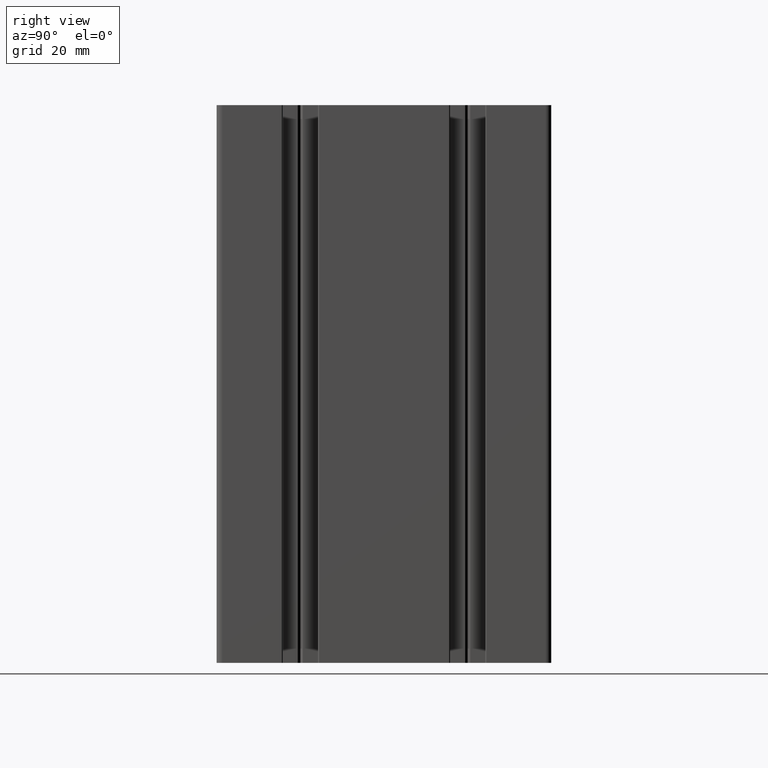
[diagram: clean part render]
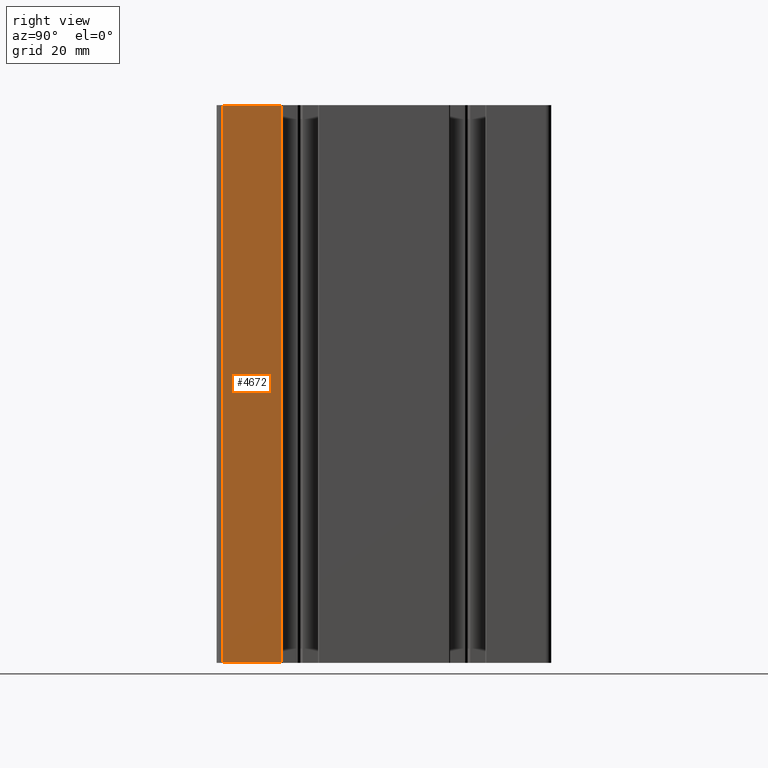
[diagram: same view with one face highlighted and labeled with its STEP entity id]
A machine part, right view. The second image highlights one B-rep face of the part: STEP entity #4672.
In plain terms, the highlighted planar face has unit normal (1, 0, 0).
Its self-contained STEP definition (entity closure, byte-faithful):
#504=FACE_OUTER_BOUND('',#746,.T.);
#746=EDGE_LOOP('',(#3523,#3524,#3525,#3526));
#1126=LINE('',#7434,#1606);
#1127=LINE('',#7437,#1607);
#1128=LINE('',#7439,#1608);
#1129=LINE('',#7440,#1609);
#1606=VECTOR('',#6030,100.);
#1607=VECTOR('',#6033,10.5852839475006);
#1608=VECTOR('',#6034,10.5852839475006);
#1609=VECTOR('',#6035,100.);
#2093=VERTEX_POINT('',#7430);
#2094=VERTEX_POINT('',#7432);
#2095=VERTEX_POINT('',#7436);
#2096=VERTEX_POINT('',#7438);
#2692=EDGE_CURVE('',#2093,#2094,#1126,.T.);
#2693=EDGE_CURVE('',#2095,#2093,#1127,.T.);
#2694=EDGE_CURVE('',#2096,#2094,#1128,.T.);
#2695=EDGE_CURVE('',#2095,#2096,#1129,.T.);
#3523=ORIENTED_EDGE('',*,*,#2693,.T.);
#3524=ORIENTED_EDGE('',*,*,#2692,.T.);
#3525=ORIENTED_EDGE('',*,*,#2694,.F.);
#3526=ORIENTED_EDGE('',*,*,#2695,.F.);
#4479=PLANE('',#5046);
#4672=ADVANCED_FACE('',(#504),#4479,.T.);
#5046=AXIS2_PLACEMENT_3D('',#7435,#6031,#6032);
#6030=DIRECTION('',(0.,0.,1.));
#6031=DIRECTION('center_axis',(1.,0.,0.));
#6032=DIRECTION('ref_axis',(0.,1.,0.));
#6033=DIRECTION('',(0.,1.,0.));
#6034=DIRECTION('',(0.,1.,0.));
#6035=DIRECTION('',(0.,0.,1.));
#7430=CARTESIAN_POINT('',(29.9999990550003,-18.4113706574998,0.));
#7432=CARTESIAN_POINT('',(29.9999990550003,-18.4113706574998,100.));
#7434=CARTESIAN_POINT('',(29.9999990550003,-18.4113706574998,0.));
#7435=CARTESIAN_POINT('Origin',(29.9999990550003,-28.9966546050003,0.));
#7436=CARTESIAN_POINT('',(29.9999990550003,-28.9966546050003,0.));
#7437=CARTESIAN_POINT('',(29.9999990550003,-28.9966546050003,0.));
#7438=CARTESIAN_POINT('',(29.9999990550003,-28.9966546050003,100.));
#7439=CARTESIAN_POINT('',(29.9999990550003,-28.9966546050003,100.));
#7440=CARTESIAN_POINT('',(29.9999990550003,-28.9966546050003,0.));